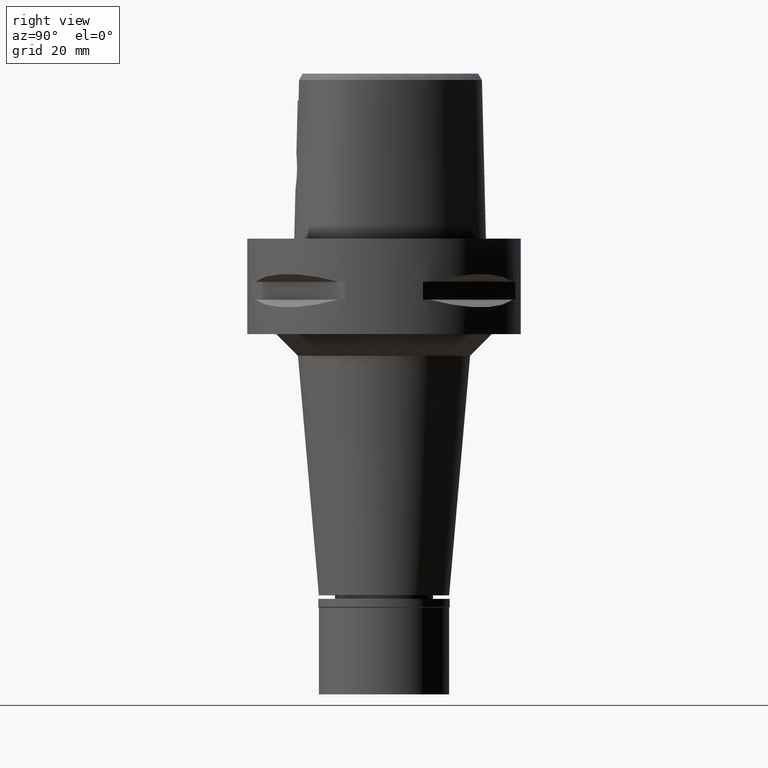
[diagram: clean part render]
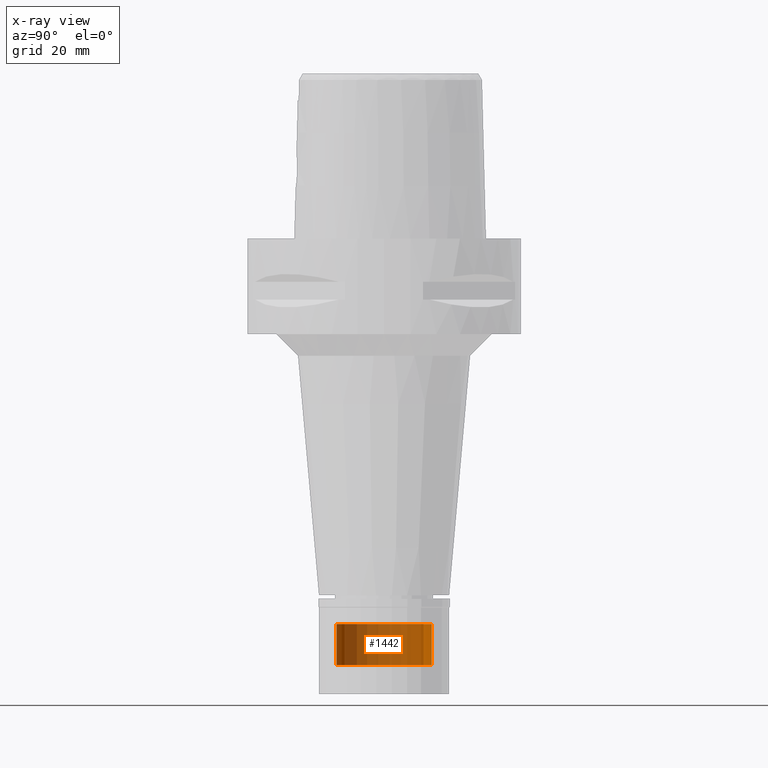
[diagram: x-ray — body ghosted, one internal face saturated and labeled with its STEP entity id]
A machine part, right view, then the same camera in x-ray: the body is ghosted and one INTERNAL B-rep face — a face not visible from any outside direction — is saturated and labeled: STEP entity #1442.
In plain terms, the highlighted cylindrical surface (partial cylindrical patch) has radius 11 mm, axis along (0, 0, -1).
Its self-contained STEP definition (entity closure, byte-faithful):
#137 = VERTEX_POINT ( 'NONE', #1608 ) ;
#154 = AXIS2_PLACEMENT_3D ( 'NONE', #2711, #700, #4622 ) ;
#232 = CIRCLE ( 'NONE', #4896, 11.00000000000000000 ) ;
#700 = DIRECTION ( 'NONE',  ( 0.0000000000000000000, 0.0000000000000000000, -1.000000000000000000 ) ) ;
#755 = ORIENTED_EDGE ( 'NONE', *, *, #4002, .F. ) ;
#775 = ORIENTED_EDGE ( 'NONE', *, *, #1876, .T. ) ;
#1442 = ADVANCED_FACE ( 'NONE', ( #2289 ), #2329, .T. ) ;
#1445 = LINE ( 'NONE', #3088, #3799 ) ;
#1504 = CARTESIAN_POINT ( 'NONE',  ( 0.0000000000000000000, -11.00000000000000000, -88.79999999999999716 ) ) ;
#1608 = CARTESIAN_POINT ( 'NONE',  ( 0.0000000000000000000, 11.00000000000000000, -88.79999999999999716 ) ) ;
#1847 = CARTESIAN_POINT ( 'NONE',  ( 0.0000000000000000000, 11.00000000000000000, -98.29999999999999716 ) ) ;
#1862 = VECTOR ( 'NONE', #3073, 1000.000000000000000 ) ;
#1876 = EDGE_CURVE ( 'NONE', #4256, #3622, #232, .T. ) ;
#1905 = CARTESIAN_POINT ( 'NONE',  ( 0.0000000000000000000, 0.0000000000000000000, 4.915000000000000036 ) ) ;
#1953 = DIRECTION ( 'NONE',  ( 0.0000000000000000000, 0.0000000000000000000, -1.000000000000000000 ) ) ;
#2288 = CARTESIAN_POINT ( 'NONE',  ( 0.0000000000000000000, -11.00000000000000000, -98.29999999999999716 ) ) ;
#2289 = FACE_OUTER_BOUND ( 'NONE', #3009, .T. ) ;
#2329 = CYLINDRICAL_SURFACE ( 'NONE', #3333, 11.00000000000000000 ) ;
#2643 = VERTEX_POINT ( 'NONE', #2987 ) ;
#2711 = CARTESIAN_POINT ( 'NONE',  ( 0.0000000000000000000, 0.0000000000000000000, -88.79999999999999716 ) ) ;
#2723 = DIRECTION ( 'NONE',  ( 0.0000000000000000000, 0.0000000000000000000, -1.000000000000000000 ) ) ;
#2987 = CARTESIAN_POINT ( 'NONE',  ( 0.0000000000000000000, -11.00000000000000000, -88.79999999999999716 ) ) ;
#3009 = EDGE_LOOP ( 'NONE', ( #775, #755, #3657, #4576 ) ) ;
#3073 = DIRECTION ( 'NONE',  ( 0.0000000000000000000, 0.0000000000000000000, -1.000000000000000000 ) ) ;
#3088 = CARTESIAN_POINT ( 'NONE',  ( 0.0000000000000000000, 11.00000000000000000, -88.79999999999999716 ) ) ;
#3315 = EDGE_CURVE ( 'NONE', #2643, #137, #3824, .T. ) ;
#3333 = AXIS2_PLACEMENT_3D ( 'NONE', #1905, #1953, #3504 ) ;
#3504 = DIRECTION ( 'NONE',  ( 0.0000000000000000000, -1.000000000000000000, 0.0000000000000000000 ) ) ;
#3622 = VERTEX_POINT ( 'NONE', #2288 ) ;
#3657 = ORIENTED_EDGE ( 'NONE', *, *, #3315, .T. ) ;
#3774 = DIRECTION ( 'NONE',  ( 0.0000000000000000000, 1.000000000000000000, 0.0000000000000000000 ) ) ;
#3799 = VECTOR ( 'NONE', #2723, 1000.000000000000000 ) ;
#3824 = CIRCLE ( 'NONE', #154, 11.00000000000000000 ) ;
#4002 = EDGE_CURVE ( 'NONE', #2643, #3622, #4307, .T. ) ;
#4256 = VERTEX_POINT ( 'NONE', #1847 ) ;
#4307 = LINE ( 'NONE', #1504, #1862 ) ;
#4576 = ORIENTED_EDGE ( 'NONE', *, *, #4958, .T. ) ;
#4622 = DIRECTION ( 'NONE',  ( 0.0000000000000000000, -1.000000000000000000, 0.0000000000000000000 ) ) ;
#4896 = AXIS2_PLACEMENT_3D ( 'NONE', #4923, #4943, #3774 ) ;
#4923 = CARTESIAN_POINT ( 'NONE',  ( 0.0000000000000000000, 0.0000000000000000000, -98.29999999999999716 ) ) ;
#4943 = DIRECTION ( 'NONE',  ( 0.0000000000000000000, 0.0000000000000000000, 1.000000000000000000 ) ) ;
#4958 = EDGE_CURVE ( 'NONE', #137, #4256, #1445, .T. ) ;